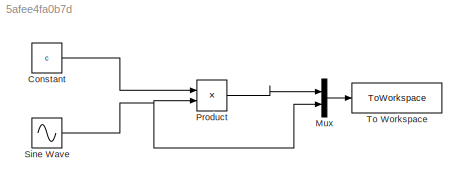
MODEL slx_5afee4fa0b7d
KIND model
CONFIG AbsTol = auto
CONFIG EnableMultiTasking = off
CONFIG FixedStep = 1e-3
CONFIG MaxStep = auto
CONFIG MinStep = auto
CONFIG RelTol = 1e-3
CONFIG SampleTimeConstraint = Unconstrained
CONFIG SolverName = FixedStepAuto
CONFIG StartTime = 0.0
CONFIG StopTime = ts
BLOCK [Constant] Constant
  Value = c
BLOCK [Mux] Mux
  DisplayOption = bar
  Inputs = 2
BLOCK [Product] Product
BLOCK [Sin] Sine Wave
  Frequency = f
  SampleTime = 0
BLOCK [ToWorkspace] To Workspace
  FixptAsFi = on
  MaxDataPoints = inf
  SampleTime = -1
  SaveFormat = Timeseries
  VariableName = simout
LINE Constant:1 -> Product:1
LINE Mux:1 -> To Workspace:1
LINE Product:1 -> Mux:1
NET Sine Wave:1 -> Mux:2, Product:2
note: NET lines group one-source signal fan-out (src -> all destinations, sorted); 1:1 wires keep LINE
